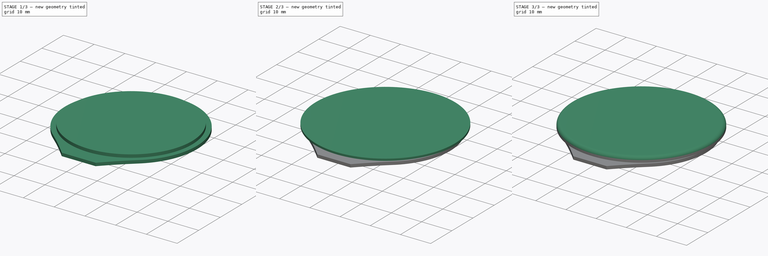
[diagram: build sequence overview — one tinted view per stage of 3, left to right]
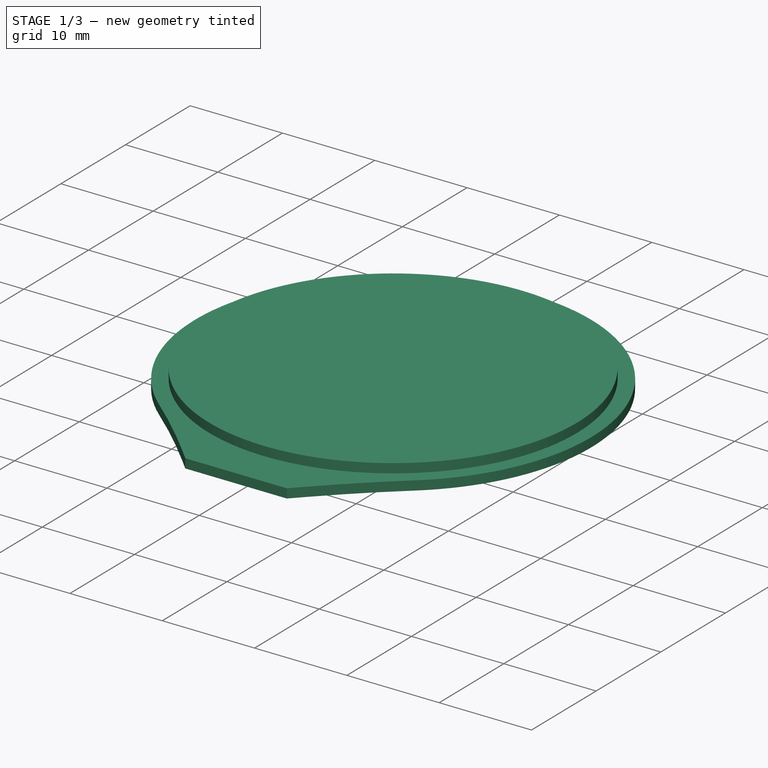
[diagram: stage 1 of 3 — iso view after this stage's code; geometry added in this stage tinted green]
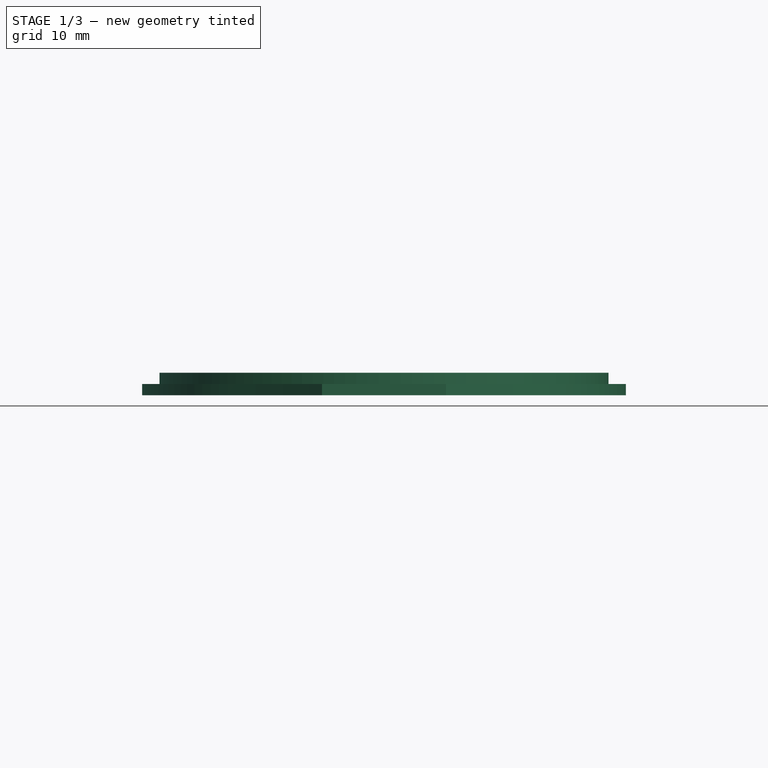
[diagram: stage 1 of 3 — front view after this stage's code; geometry added in this stage tinted green]
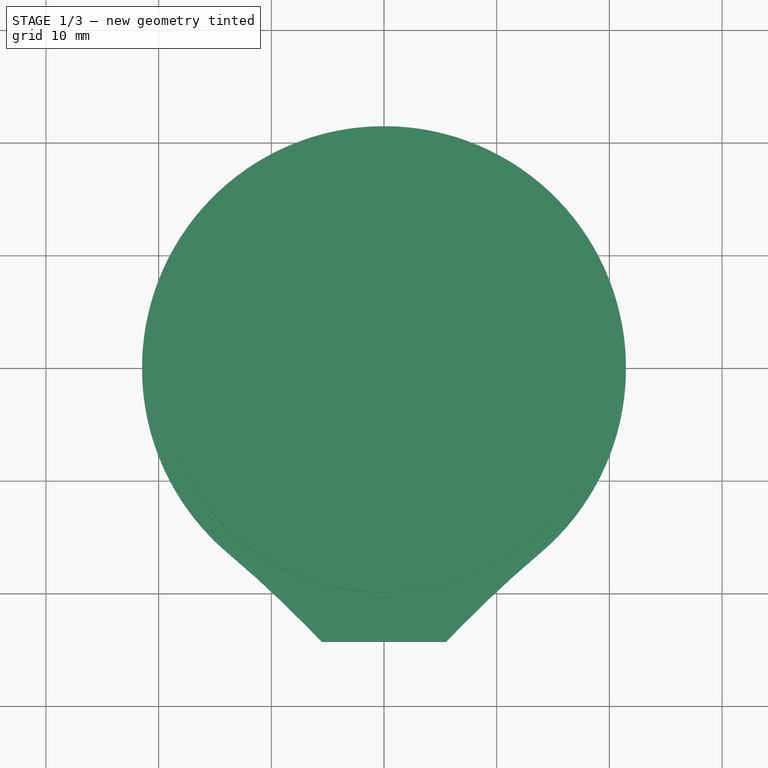
[diagram: stage 1 of 3 — top view after this stage's code; geometry added in this stage tinted green]
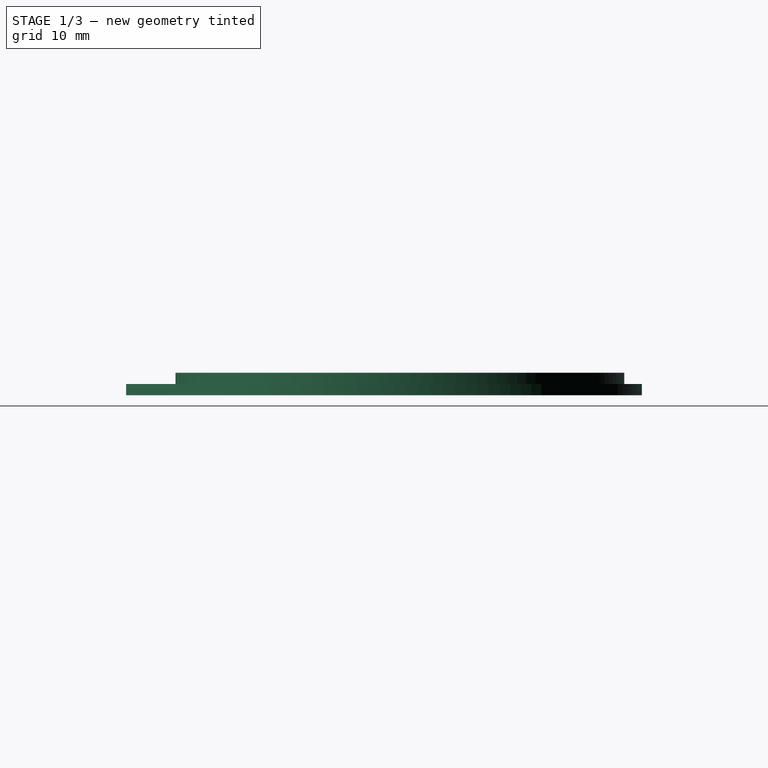
[diagram: stage 1 of 3 — right view after this stage's code; geometry added in this stage tinted green]
FCSTD DOCUMENT  (FreeCAD 0.20R29603 (Git))
Label: LCD_TP
License: All rights reserved
LicenseURL: http://en.wikipedia.org/wiki/All_rights_reserved
objects: Sketcher::SketchObject×4, PartDesign::Pad×4, Image::ImagePlane×1, PartDesign::Fillet×1, PartDesign::Body×1
note: 15 computed .brp shape members not serialized (recipe doc carries the construction recipe); baked Part::Feature solids carry a one-line shape summary decoded from their .brp

FEATURE [Sketcher::SketchObject] Sketch
  FullyConstrained = false
  MapMode = 5
  Support = -> [XY_Plane]
  sketch-geometry (8):
    g0: ArcOfCircle CenterX=0 CenterY=0 CenterZ=0 NormalX=0 NormalY=0 NormalZ=1 AngleXU=0 Radius=21.475 StartAngle=5.41316 EndAngle=10.2948
    g1: GeomPoint X=0 Y=21.475 Z=0
    g2: LineSegment StartX=-5.5 StartY=-24.295 StartZ=0 EndX=5.5 EndY=-24.295 EndZ=0
    g3: LineSegment StartX=5.5 StartY=-24.295 StartZ=0 EndX=6.65208 EndY=-23.1124 EndZ=0
    g4: LineSegment StartX=-5.5 StartY=-24.295 StartZ=0 EndX=-6.65208 EndY=-23.1124 EndZ=0
    g5: ArcOfCircle CenterX=-78.7443 CenterY=-93.3415 CenterZ=0 NormalX=0 NormalY=0 NormalZ=1 AngleXU=0 Radius=100.645 StartAngle=0.772308 EndAngle=0.870021
    g6: ArcOfCircle CenterX=78.7443 CenterY=-93.3415 CenterZ=0 NormalX=0 NormalY=0 NormalZ=1 AngleXU=0 Radius=100.645 StartAngle=2.27157 EndAngle=2.36928
    g7: LineSegment StartX=-5.5 StartY=-24.295 StartZ=0 EndX=4.74161 EndY=20.945 EndZ=0
  constraints (20):
    c: Coincident(g0,g-1)
    c: Diameter(g0) = 42.95
    c: PointOnObject(g1,g-2)
    c: PointOnObject(g1,g0)
    c: Symmetric(g2,g2,g-2)
    c: DistanceY(g2,g1) = 45.77
    c: DistanceX(g2,g2) = 11
    c: Coincident(g4,g2)
    c: Coincident(g3,g2)
    c: Tangent(g0,g5) = 1.5708
    c: Tangent(g4,g5) = -1.5708
    c: Tangent(g3,g6) = 1.5708
    c: Tangent(g0,g6) = 1.5708
    c: Angle(g3,g2) = 2.3431
    c: Angle(g2,g4) = 2.3431
    c: Symmetric(g0,g0,g-2)
    c: Coincident(g7,g2)
    c: PointOnObject(g7,g0)
    c: PointOnObject(g0,g7)
    c: Distance(g7) = 46.3848
FEATURE [Image::ImagePlane] ImagePlane
  Placement = pos=(-5.38,7.6,0) rot=(0,0,1;0rad)
  XSize = 84.1344
  YSize = 69.2755
FEATURE [PartDesign::Pad] Pad
  Direction = (0,0,1)
  Length = 1
  Length2 = 10
  Profile = -> Sketch
  ReferenceAxis = -> Sketch [N_Axis]
  Type = 0
FEATURE [Sketcher::SketchObject] Sketch001
  FullyConstrained = true
  MapMode = 5
  Placement = pos=(0,0,1) rot=(0,0,1;0rad)
  Support = -> [Pad]
  sketch-geometry (1):
    g0: Circle CenterX=0 CenterY=0 CenterZ=0 NormalX=0 NormalY=0 NormalZ=1 AngleXU=0 Radius=19.92
  constraints (2):
    c: Coincident(g0,g-1)
    c: Diameter(g0) = 39.84
FEATURE [PartDesign::Pad] Pad001
  BaseFeature = -> Pad
  Direction = (0,0,1)
  Length = 1
  Length2 = 10
  Profile = -> Sketch001
  ReferenceAxis = -> Sketch001 [N_Axis]
  Type = 0
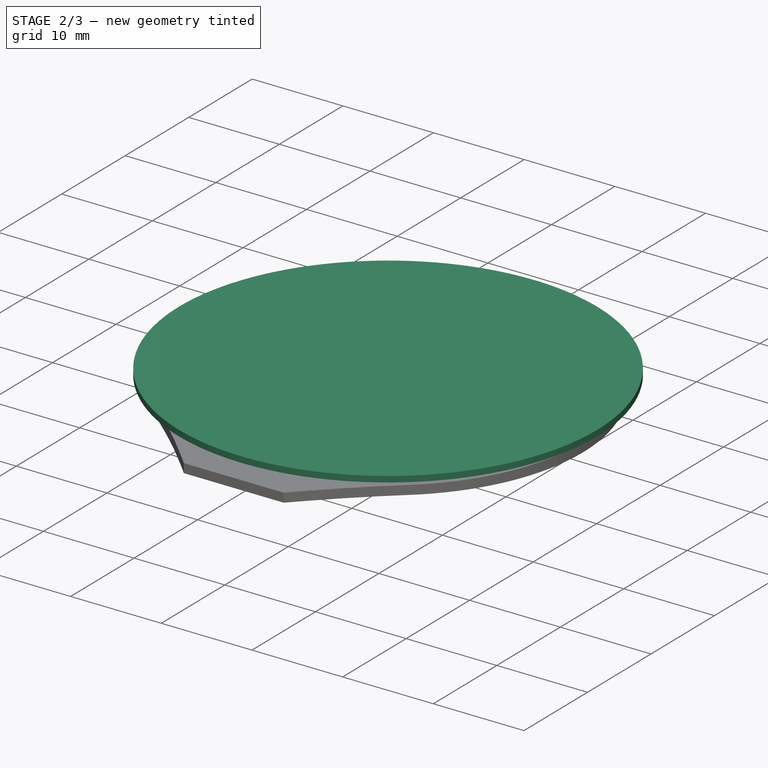
[diagram: stage 2 of 3 — iso view after this stage's code; geometry added in this stage tinted green]
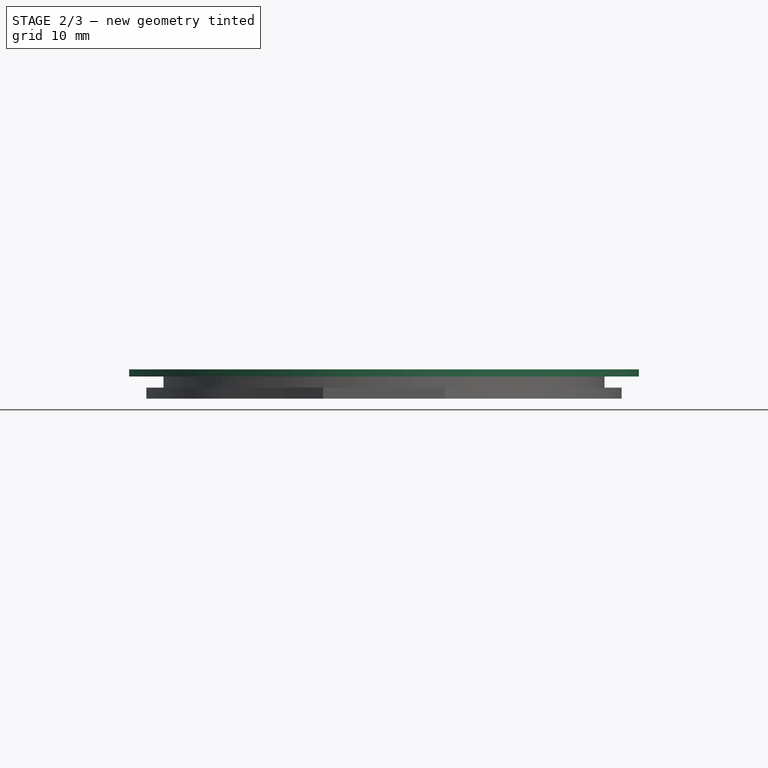
[diagram: stage 2 of 3 — front view after this stage's code; geometry added in this stage tinted green]
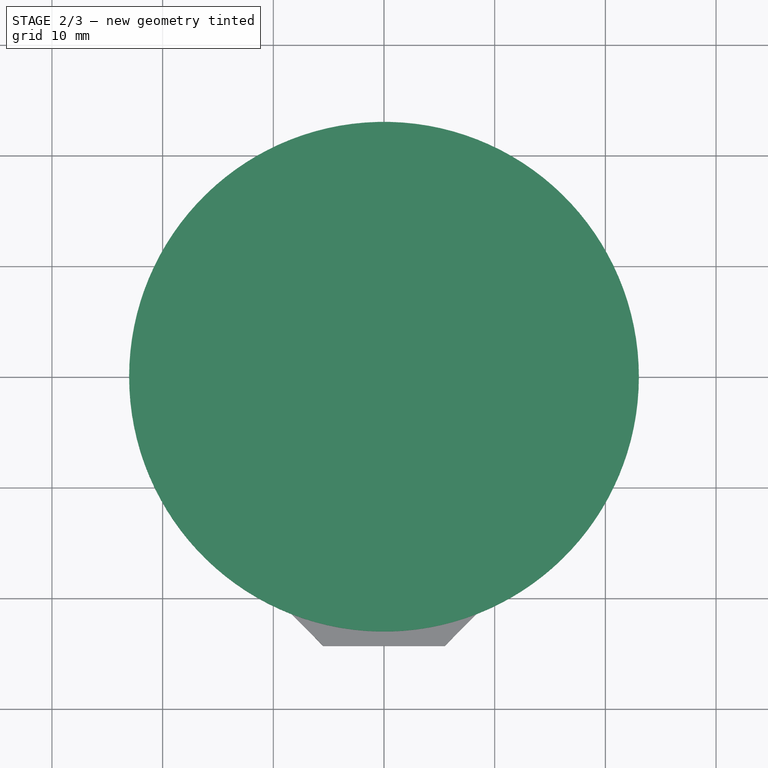
[diagram: stage 2 of 3 — top view after this stage's code; geometry added in this stage tinted green]
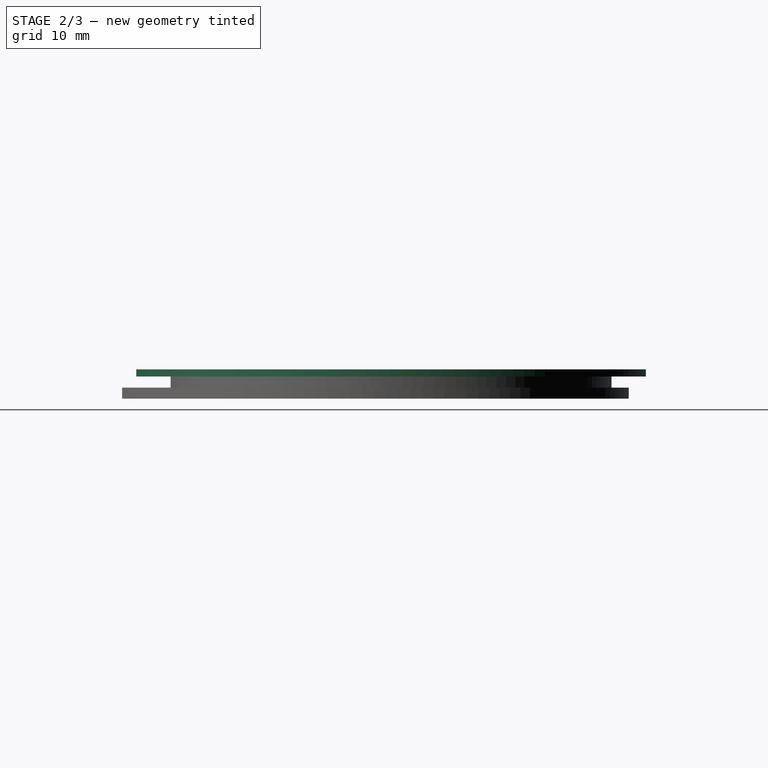
[diagram: stage 2 of 3 — right view after this stage's code; geometry added in this stage tinted green]
FEATURE [Sketcher::SketchObject] Sketch002
  FullyConstrained = true
  MapMode = 5
  Placement = pos=(0,0,2) rot=(0,0,1;0rad)
  Support = -> [Pad001]
  sketch-geometry (1):
    g0: Circle CenterX=0 CenterY=0 CenterZ=0 NormalX=0 NormalY=0 NormalZ=1 AngleXU=0 Radius=23.025
  constraints (2):
    c: Coincident(g0,g-1)
    c: Diameter(g0) = 46.05
FEATURE [PartDesign::Pad] Pad002
  BaseFeature = -> Pad001
  Direction = (0,0,1)
  Length = 0.65
  Length2 = 10
  Profile = -> Sketch002
  ReferenceAxis = -> Sketch002 [N_Axis]
  Type = 0
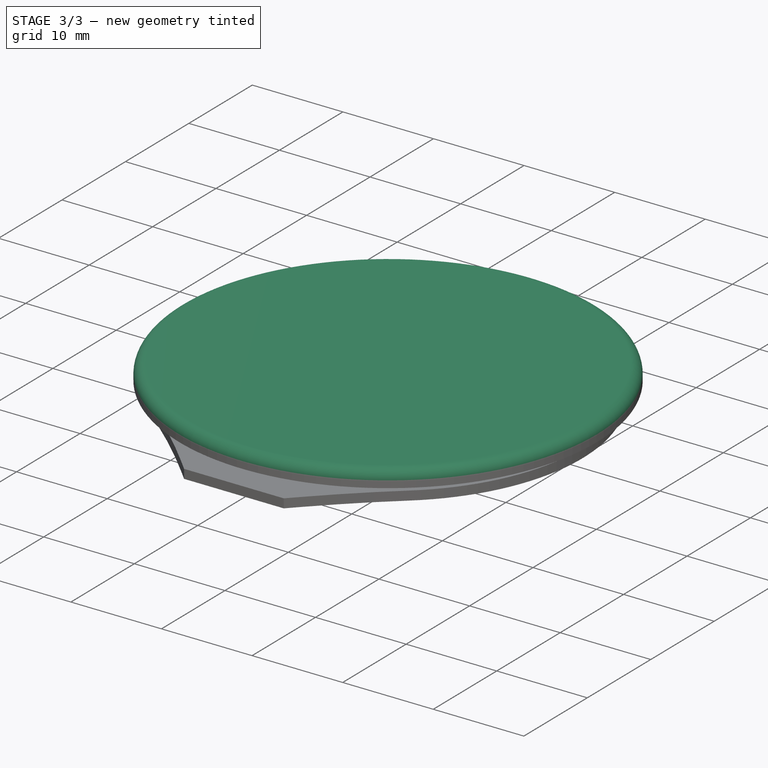
[diagram: stage 3 of 3 — iso view after this stage's code; geometry added in this stage tinted green]
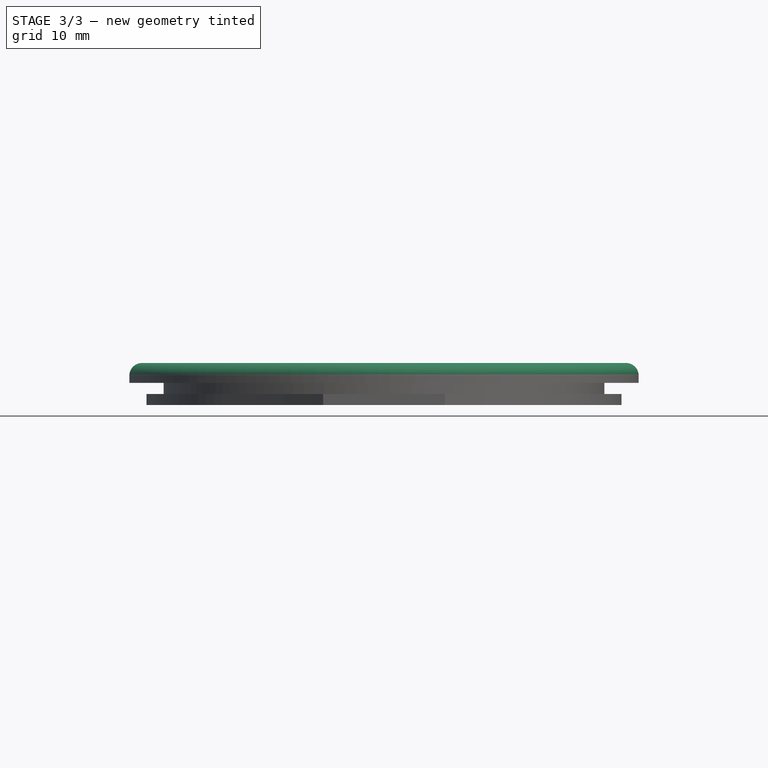
[diagram: stage 3 of 3 — front view after this stage's code; geometry added in this stage tinted green]
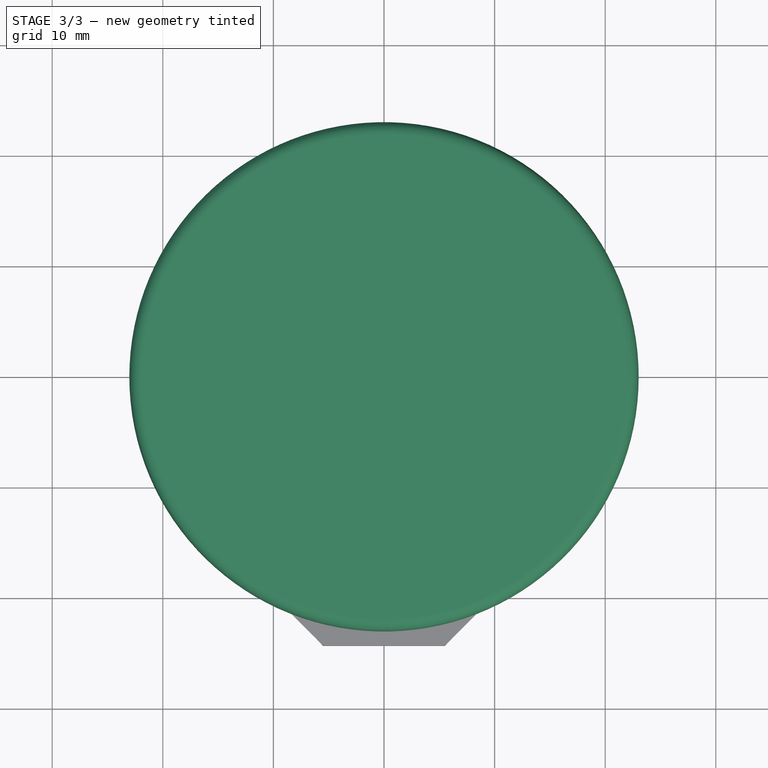
[diagram: stage 3 of 3 — top view after this stage's code; geometry added in this stage tinted green]
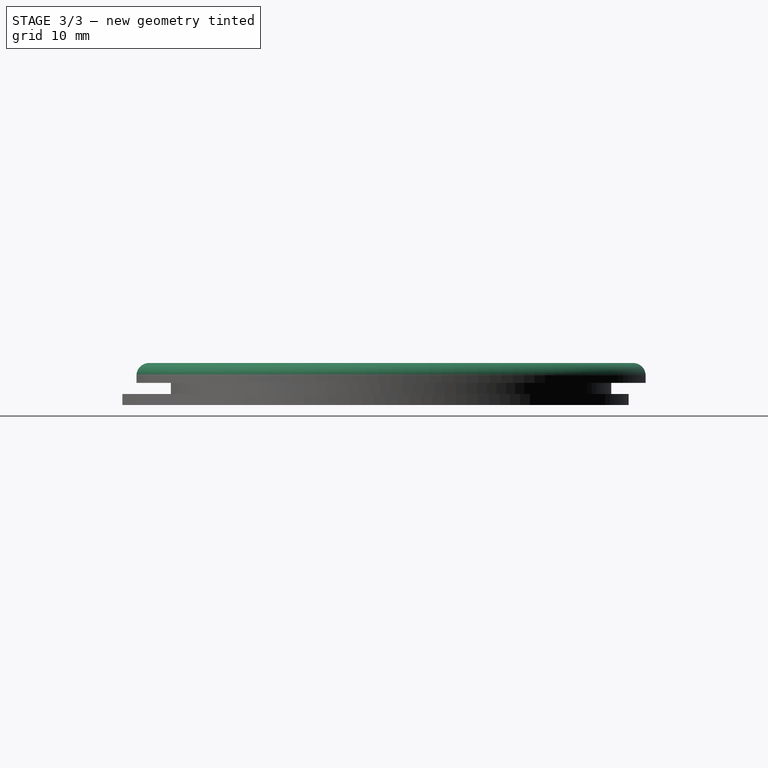
[diagram: stage 3 of 3 — right view after this stage's code; geometry added in this stage tinted green]
FEATURE [Sketcher::SketchObject] Sketch003
  FullyConstrained = true
  MapMode = 5
  Placement = pos=(0,0,2.65) rot=(0,0,1;0rad)
  Support = -> [Pad002]
  sketch-geometry (1):
    g0: Circle CenterX=0 CenterY=0 CenterZ=0 NormalX=0 NormalY=0 NormalZ=1 AngleXU=0 Radius=23.025
  constraints (2):
    c: Diameter(g0) = 46.05
    c: Coincident(g-1,g0)
FEATURE [PartDesign::Pad] Pad003
  BaseFeature = -> Pad002
  Direction = (0,0,1)
  Length = 1.15
  Length2 = 10
  Profile = -> Sketch003
  ReferenceAxis = -> Sketch003 [N_Axis]
  Type = 0
FEATURE [PartDesign::Fillet] Fillet
  Base = -> Pad003 [Edge6]
  BaseFeature = -> Pad003
  Radius = 1.14
  SupportTransform = false
  UseAllEdges = false
FEATURE [PartDesign::Body] Body
  Group = -> [Sketch,Pad,Sketch001,Pad001,Sketch002,Pad002,Sketch003,Pad003,Fillet]
  Origin = -> Origin
  Tip = -> Fillet
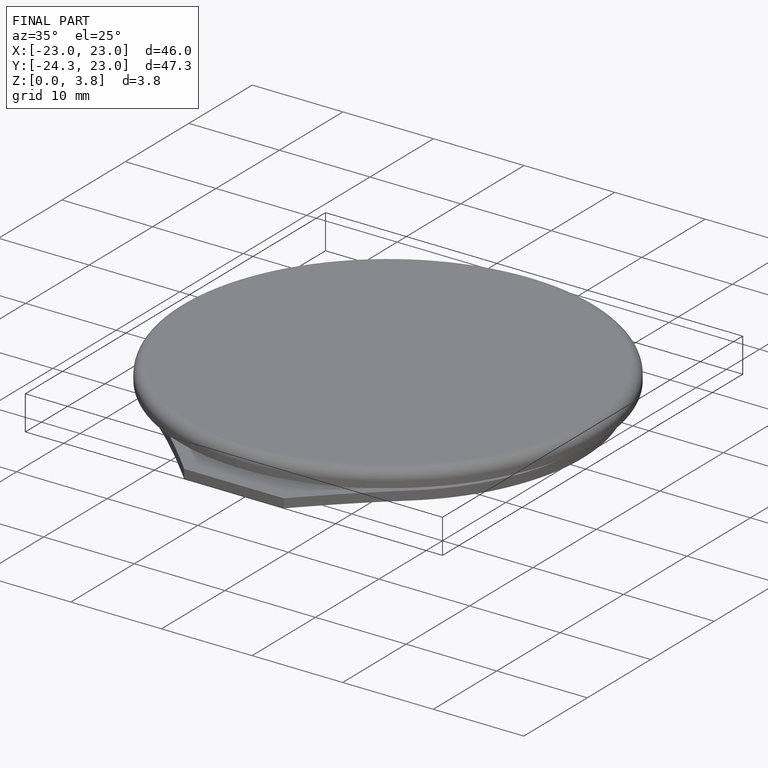
[diagram: finished part — iso view with bounding-box wireframe]
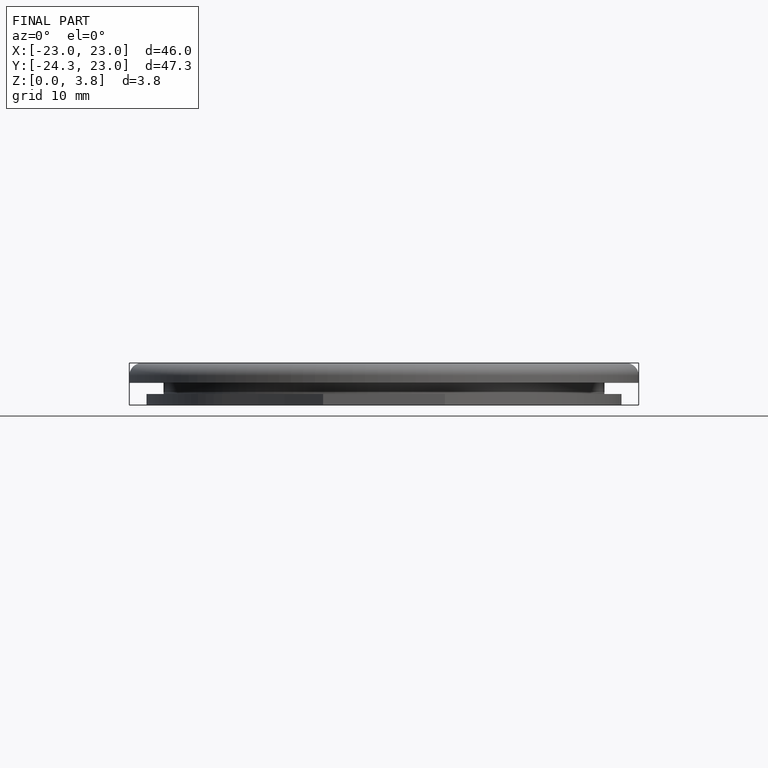
[diagram: finished part — front view with bounding-box wireframe]
